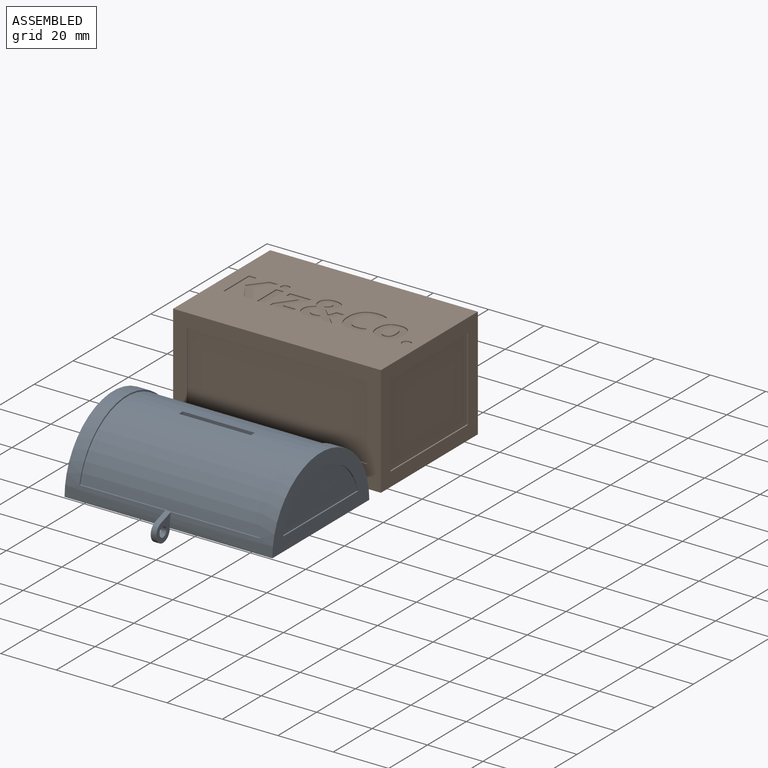
[diagram: assembled view]
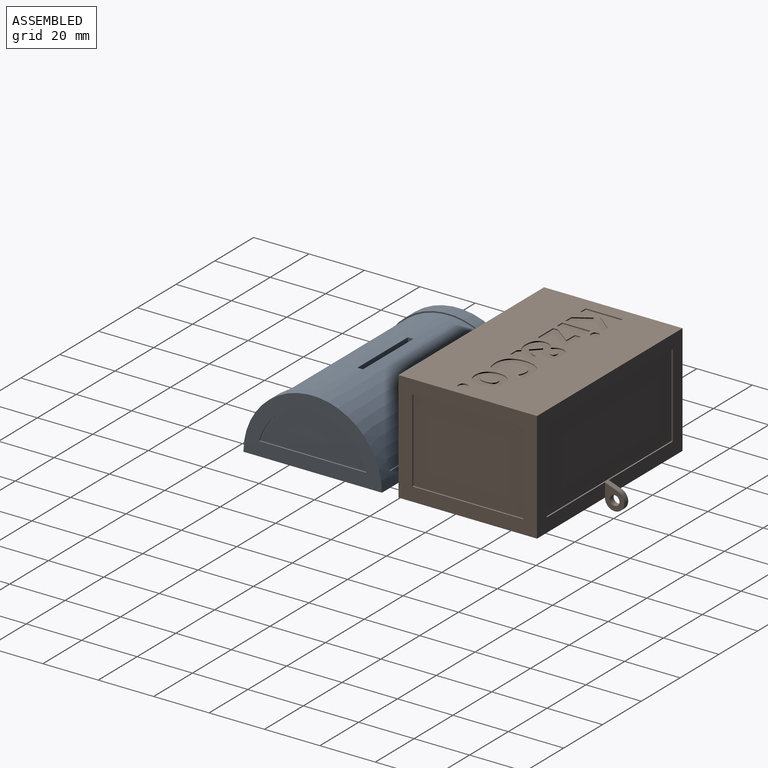
[diagram: assembled view, second angle]
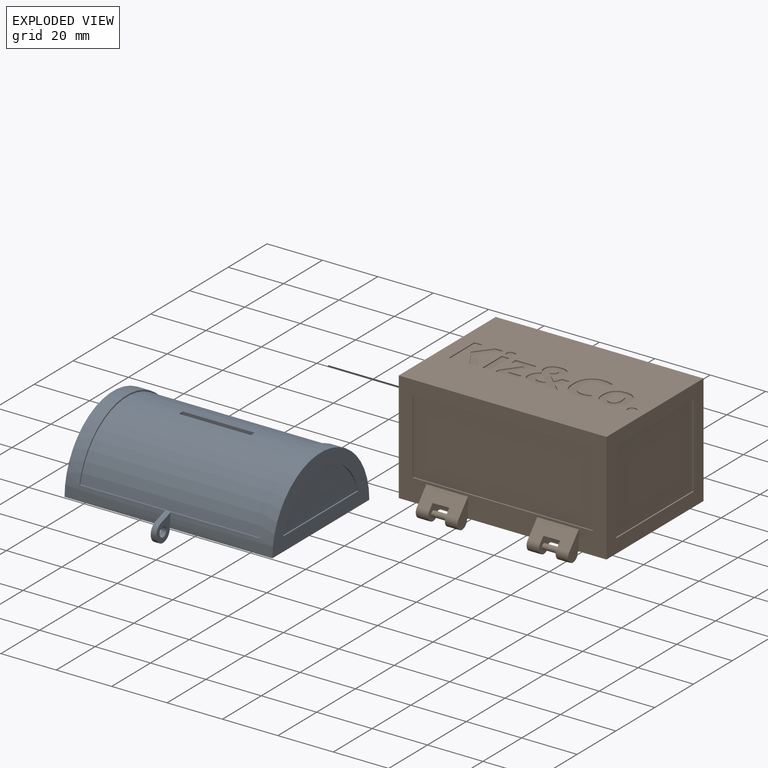
[diagram: exploded view]
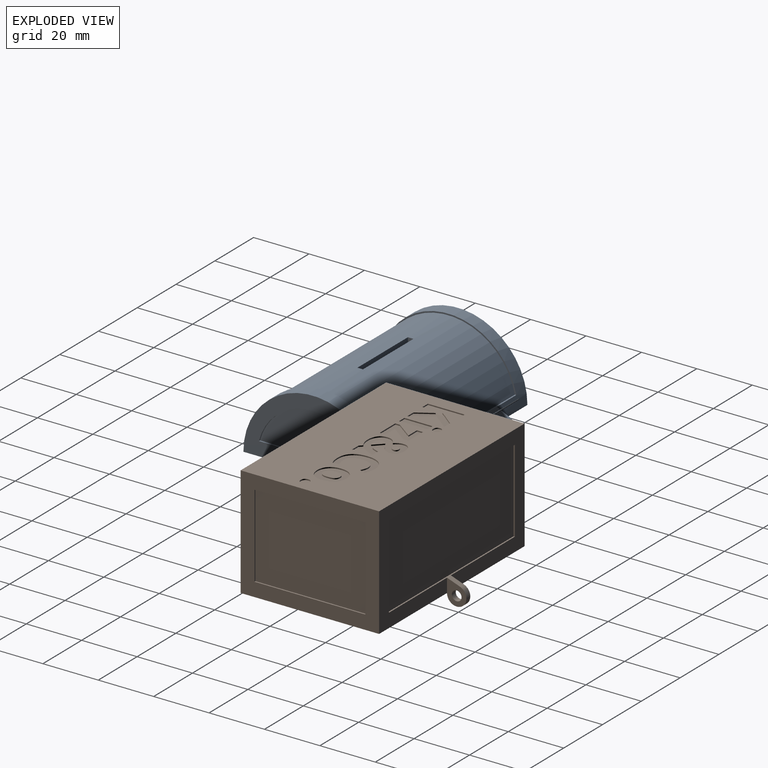
[diagram: exploded view, second angle]
ASSEMBLY  parts=2 mates=2
PART A: 39 faces, bbox 75x63x28.5 mm
  f0: cylinder r=25mm len=50mm, axis (1,0,0), area 599.1mm2, adj f3,f4,f14,f19,f27,f29,f30
  f1: cylinder r=25mm len=35mm, axis (1,0,0), area 176.2mm2, adj f3,f9,f15,f29
  f2: cylinder r=25mm len=50mm, axis (1,0,0), area 604.1mm2, adj f3,f5,f10,f20,f27,f29,f31
  f3: plane 75x50mm, normal (0,0,-1), area 714mm2, adj f0,f1,f2,f4,f5,f6,f11,f17
  f4: plane 50x25mm, normal (-1,0,0), area 551.3mm2, adj f0,f3,f24,f25
  f5: plane 50x25mm, normal (1,0,0), area 551.3mm2, adj f2,f3,f21,f22
  f6: cylinder r=3mm len=6mm, axis (1,0,0), area 64.6mm2, adj f3,f8,f9,f10
  f7: cylinder r=1.5mm len=5mm, axis (1,0,0), area 47.1mm2, adj f9,f10
  f8: plane 5x4.69mm, normal (0,0.43,0.9), area 26mm2, adj f6,f9,f10,f29
  f9: plane 8x6.51mm, normal (-1,0,0), area 27.2mm2, adj f1,f6,f7,f8
  f10: plane 8x6.51mm, normal (1,0,0), area 27.2mm2, adj f2,f6,f7,f8
  f11: cylinder r=3mm len=6mm, axis (1,0,0), area 64.6mm2, adj f3,f13,f14,f15
  f12: cylinder r=1.5mm len=5mm, axis (1,0,0), area 47.1mm2, adj f14,f15
  f13: plane 5x4.69mm, normal (0,0.43,0.9), area 26mm2, adj f11,f14,f15,f29
  f14: plane 8x6.51mm, normal (-1,0,0), area 27.2mm2, adj f0,f11,f12,f13
  f15: plane 8x6.51mm, normal (1,0,0), area 27.2mm2, adj f1,f11,f12,f13
  f16: plane 5.02x2mm, normal (0,-0.31,0.95), area 10.6mm2, adj f17,f19,f20,f27
  f17: cylinder r=3.5mm len=7mm, axis (1,0,0), area 30.9mm2, adj f3,f16,f19,f20
  f18: cylinder r=1.75mm len=3.5mm, axis (1,0,0), area 22mm2, adj f19,f20
  f19: plane 8.5x7.51mm, normal (-1,0,0), area 35mm2, adj f0,f16,f17,f18
  f20: plane 8.5x7.51mm, normal (1,0,0), area 35mm2, adj f2,f16,f17,f18
  f21: cylinder r=20mm len=38.73mm, axis (1,0,0), area 26.4mm2, adj f5,f22,f23
  f22: plane 38.73x0.5mm, normal (0,0,1), area 19.4mm2, adj f5,f21,f23
  f23: plane 38.73x15mm, normal (1,0,0), area 430.4mm2, adj f21,f22
  f24: cylinder r=20mm len=38.73mm, axis (1,0,0), area 26.4mm2, adj f4,f25,f26
  f25: plane 38.73x0.5mm, normal (0,0,1), area 19.4mm2, adj f4,f24,f26
  f26: plane 38.73x15mm, normal (-1,0,0), area 430.4mm2, adj f24,f25
  f27: plane 65x0.51mm, normal (0,0,1), area 33.2mm2, adj f0,f2,f16,f28,f30,f31
  f28: cylinder r=24.5mm len=65mm, axis (1,0,0), area 4296.4mm2, adj f27,f29,f30,f31,f35,f36,f37,f38
  f29: plane 65x0.51mm, normal (0,0,1), area 33.2mm2, adj f0,f1,f2,f8,f13,f28,f30,f31
  f30: plane 48.99x20mm, normal (1,0,0), area 33.8mm2, adj f0,f27,f28,f29
  f31: plane 48.99x20mm, normal (-1,0,0), area 33.8mm2, adj f2,f27,f28,f29
  f32: cylinder r=22mm len=69mm, axis (1,0,0), area 4716.9mm2, adj f3,f33,f34,f35,f36,f37,f38
  f33: plane 44x22mm, normal (1,0,0), area 760.3mm2, adj f3,f32
  f34: plane 44x22mm, normal (-1,0,0), area 760.3mm2, adj f3,f32
  f35: plane 2.52x2mm, normal (1,0,0), area 5mm2, adj f28,f32,f36,f38
  f36: plane 26x2.5mm, normal (0,1,0), area 65.1mm2, adj f28,f32,f35,f37
  f37: plane 2.52x2mm, normal (-1,0,0), area 5mm2, adj f28,f32,f36,f38
  f38: plane 26x2.5mm, normal (0,-1,0), area 65.1mm2, adj f28,f32,f35,f37
PART B: 172 faces, bbox 75x62.5x43.5 mm
  f0: plane 75x50mm, normal (0,0,-1), area 3319.3mm2, adj f1,f2,f3,f9,f54,f55,f56,f57
  f1: plane 50x40mm, normal (-1,0,0), area 800mm2, adj f0,f3,f4,f9,f49,f50,f51,f52
  f2: plane 50x40mm, normal (1,0,0), area 800mm2, adj f0,f3,f4,f9,f44,f45,f46,f47
  f3: plane 75x40mm, normal (0,1,0), area 1029.6mm2, adj f0,f1,f2,f4,f6,f8,f16,f17
  f4: plane 75x50.5mm, normal (0,0,1), area 717mm2, adj f1,f2,f3,f5,f7,f9,f10,f11
  f5: cylinder r=2.5mm len=5mm, axis (1,0,0), area 45.4mm2, adj f4,f6,f19,f24
  f6: plane 15x5.24mm, normal (0,0.75,-0.66), area 91.9mm2, adj f3,f5,f18,f19,f20,f24,f25,f26
  f7: cylinder r=2.5mm len=5mm, axis (1,0,0), area 45.4mm2, adj f4,f8,f16,f21
  f8: plane 15x5.24mm, normal (0,0.75,-0.66), area 91.9mm2, adj f3,f7,f15,f16,f17,f21,f22,f23
  f9: plane 75x40mm, normal (0,-1,0), area 1040mm2, adj f0,f1,f2,f4,f32,f33,f34,f35
  f10: plane 69x37mm, normal (0,-1,0), area 2553mm2, adj f4,f11,f13,f14
  f11: plane 44x37mm, normal (1,0,0), area 1628mm2, adj f4,f10,f12,f14
  f12: plane 69x37mm, normal (0,1,0), area 2553mm2, adj f4,f11,f13,f14
  f13: plane 44x37mm, normal (-1,0,0), area 1628mm2, adj f4,f10,f12,f14
  f14: plane 69x44mm, normal (0,0,1), area 3036mm2, adj f10,f11,f12,f13
  f15: cylinder r=2.5mm len=5mm, axis (1,0,0), area 45.4mm2, adj f4,f8,f17,f22
  f16: plane 9.68x5.5mm, normal (-1,0,0), area 31.9mm2, adj f3,f4,f7,f8
  f17: plane 9.68x5.5mm, normal (1,0,0), area 31.9mm2, adj f3,f4,f8,f15
  f18: cylinder r=2.5mm len=5mm, axis (1,0,0), area 45.4mm2, adj f4,f6,f20,f25
  f19: plane 9.68x5.5mm, normal (-1,0,0), area 31.9mm2, adj f3,f4,f5,f6
  f20: plane 9.68x5.5mm, normal (1,0,0), area 31.9mm2, adj f3,f4,f6,f18
  f21: plane 6x6mm, normal (1,0,0), area 22mm2, adj f4,f7,f8,f23,f27
  f22: plane 6x6mm, normal (-1,0,0), area 22mm2, adj f4,f8,f15,f23,f27
  f23: cylinder r=3.5mm len=6mm, axis (1,0,0), area 34.3mm2, adj f4,f8,f21,f22
  f24: plane 6x6mm, normal (1,0,0), area 22mm2, adj f4,f5,f6,f26,f28
  f25: plane 6x6mm, normal (-1,0,0), area 22mm2, adj f4,f6,f18,f26,f28
  f26: cylinder r=3.5mm len=6mm, axis (1,0,0), area 34.3mm2, adj f4,f6,f24,f25
  f27: cylinder r=1mm len=6mm, axis (1,0,0), area 37.7mm2, adj f21,f22
  f28: cylinder r=1mm len=6mm, axis (1,0,0), area 37.7mm2, adj f24,f25
  f29: cylinder r=3.5mm len=7mm, axis (1,0,0), area 30.5mm2, adj f4,f31,f32,f33
  f30: cylinder r=1.75mm len=3.5mm, axis (1,0,0), area 22mm2, adj f32,f33
  f31: plane 4.7x2mm, normal (0,-0.34,-0.94), area 10mm2, adj f29,f32,f33,f34
  f32: plane 8.5x7mm, normal (-1,0,0), area 34.6mm2, adj f9,f29,f30,f31
  f33: plane 8.5x7mm, normal (1,0,0), area 34.6mm2, adj f9,f29,f30,f31
  f34: plane 65x0.5mm, normal (0,0,-1), area 32.5mm2, adj f9,f31,f35,f37,f38
  f35: plane 30x0.5mm, normal (1,0,0), area 15mm2, adj f9,f34,f36,f38
  f36: plane 65x0.5mm, normal (0,0,1), area 32.5mm2, adj f9,f35,f37,f38
  f37: plane 30x0.5mm, normal (-1,0,0), area 15mm2, adj f9,f34,f36,f38
  f38: plane 65x30mm, normal (0,-1,0), area 1950mm2, adj f34,f35,f36,f37
  f39: plane 27x0.5mm, normal (-1,0,0), area 13.5mm2, adj f3,f40,f42,f43
  f40: plane 65x0.5mm, normal (0,0,1), area 32.5mm2, adj f3,f39,f41,f43
  f41: plane 27x0.5mm, normal (1,0,0), area 13.5mm2, adj f3,f40,f42,f43
  f42: plane 65x0.5mm, normal (0,0,-1), area 32.5mm2, adj f3,f39,f41,f43
  f43: plane 65x27mm, normal (0,1,0), area 1755mm2, adj f39,f40,f41,f42
  f44: plane 30x0.5mm, normal (0,-1,0), area 15mm2, adj f2,f45,f47,f48
  f45: plane 40x0.5mm, normal (0,0,-1), area 20mm2, adj f2,f44,f46,f48
  f46: plane 30x0.5mm, normal (0,1,0), area 15mm2, adj f2,f45,f47,f48
  f47: plane 40x0.5mm, normal (0,0,1), area 20mm2, adj f2,f44,f46,f48
  f48: plane 40x30mm, normal (1,0,0), area 1200mm2, adj f44,f45,f46,f47
  f49: plane 40x0.5mm, normal (0,0,1), area 20mm2, adj f1,f50,f52,f53
  f50: plane 30x0.5mm, normal (0,1,0), area 15mm2, adj f1,f49,f51,f53
  f51: plane 40x0.5mm, normal (0,0,-1), area 20mm2, adj f1,f50,f52,f53
  f52: plane 30x0.5mm, normal (0,-1,0), area 15mm2, adj f1,f49,f51,f53
  f53: plane 40x30mm, normal (-1,0,0), area 1200mm2, adj f49,f50,f51,f52
  f54: extruded ~1.5x1.35mm, area 0.9mm2, adj f0,f55,f58,f59
  f55: extruded ~1.5x1.36mm, area 0.9mm2, adj f0,f54,f56,f59
  f56: extruded ~1.13x0.4mm, area 0.5mm2, adj f0,f55,f57,f59
  f57: extruded ~1x0.4mm, area 0.4mm2, adj f0,f56,f58,f59
  f58: extruded ~1.5x1.35mm, area 0.9mm2, adj f0,f54,f57,f59
  f59: plane 3.01x2.71mm, normal (0,0,-1), area 6.8mm2, adj f54,f55,f56,f57,f58
  f60: plane 2.76x0.4mm, normal (0,-1,0), area 1.1mm2, adj f0,f61,f63,f64
  f61: plane 10.13x0.4mm, normal (-1,0,0), area 4.1mm2, adj f0,f60,f62,f64
  f62: plane 2.76x0.4mm, normal (0,1,0), area 1.1mm2, adj f0,f61,f63,f64
  f63: plane 10.13x0.4mm, normal (1,0,0), area 4.1mm2, adj f0,f60,f62,f64
  f64: plane 10.13x2.76mm, normal (0,0,-1), area 28mm2, adj f60,f61,f62,f63
  f65: plane 8x0.4mm, normal (0,-1,0), area 3.2mm2, adj f0,f66,f74,f75
  f66: plane 2.11x0.4mm, normal (-1,0,0), area 0.8mm2, adj f0,f65,f67,f75
  f67: plane 4.73x0.4mm, normal (0,1,0), area 1.9mm2, adj f0,f66,f68,f75
  f68: plane 6.22x4.56mm, normal (-0.81,-0.59,0), area 3.1mm2, adj f0,f67,f69,f75
  f69: plane 1.79x0.4mm, normal (-1,0,0), area 0.7mm2, adj f0,f68,f70,f75
  f70: plane 7.55x0.4mm, normal (0,1,0), area 3mm2, adj f0,f69,f71,f75
  f71: plane 2.11x0.4mm, normal (1,0,0), area 0.8mm2, adj f0,f70,f72,f75
  f72: plane 4.41x0.4mm, normal (0,-1,0), area 1.8mm2, adj f0,f71,f73,f75
  f73: plane 6.38x4.69mm, normal (0.81,0.59,0), area 3.2mm2, adj f0,f72,f74,f75
  f74: plane 1.63x0.4mm, normal (1,0,0), area 0.7mm2, adj f0,f65,f73,f75
  f75: plane 10.13x8mm, normal (0,0,-1), area 49.9mm2, adj f65,f66,f67,f68,f69,f70,f71,f72
  f76: extruded ~2.45x1.19mm, area 1.1mm2, adj f0,f77,f90,f91
  f77: extruded ~1.48x0.4mm, area 0.6mm2, adj f0,f76,f78,f91
  f78: extruded ~1.5x0.62mm, area 0.6mm2, adj f0,f77,f79,f91
  f79: plane 2.28x0.9mm, normal (-0.93,-0.37,0), area 1mm2, adj f0,f78,f80,f91
  f80: extruded ~3.88x0.93mm, area 1.6mm2, adj f0,f79,f81,f91
  f81: extruded ~3.3x0.83mm, area 1.4mm2, adj f0,f80,f82,f91
  f82: extruded ~2.38x2.16mm, area 1.3mm2, adj f0,f81,f83,f91
  f83: extruded ~3.62x0.75mm, area 1.5mm2, adj f0,f82,f84,f91
  f84: extruded ~5.03x1.53mm, area 2.1mm2, adj f0,f83,f85,f91
  f85: extruded ~4.42x1.75mm, area 2mm2, adj f0,f84,f86,f91
  f86: extruded ~3.64x0.68mm, area 1.5mm2, adj f0,f85,f87,f91
  f87: plane 2.35x0.4mm, normal (-1,0,0), area 0.9mm2, adj f0,f86,f88,f91
  f88: extruded ~3.38x0.7mm, area 1.4mm2, adj f0,f87,f89,f91
  f89: extruded ~4.43x3.32mm, area 2.5mm2, adj f0,f88,f90,f91
  f90: extruded ~3.32x0.87mm, area 1.4mm2, adj f0,f76,f89,f91
  f91: plane 13.61x10.09mm, normal (0,0,-1), area 61.6mm2, adj f76,f77,f78,f79,f80,f81,f82,f83
  f92: extruded ~1.15x0.41mm, area 0.5mm2, adj f0,f93,f99,f100
  f93: extruded ~1.14x0.42mm, area 0.5mm2, adj f0,f92,f94,f100
  f94: extruded ~1.18x0.4mm, area 0.5mm2, adj f0,f93,f95,f100
  f95: extruded ~1.16x0.41mm, area 0.5mm2, adj f0,f94,f96,f100
  f96: extruded ~1.13x0.42mm, area 0.5mm2, adj f0,f95,f97,f100
  f97: extruded ~1.14x0.41mm, area 0.5mm2, adj f0,f96,f98,f100
  f98: extruded ~1.16x0.4mm, area 0.5mm2, adj f0,f97,f99,f100
  f99: extruded ~1.19x0.4mm, area 0.5mm2, adj f0,f92,f98,f100
  f100: plane 3.17x3.08mm, normal (0,0,-1), area 8mm2, adj f92,f93,f94,f95,f96,f97,f98,f99
  f101: extruded ~3.87x1.3mm, area 1.7mm2, adj f0,f102,f118,f119
  f102: extruded ~2.78x0.6mm, area 1.1mm2, adj f0,f101,f103,f119
  f103: extruded ~1.82x1.71mm, area 1mm2, adj f0,f102,f104,f119
  f104: extruded ~2.57x0.63mm, area 1.1mm2, adj f0,f103,f105,f119
  f105: extruded ~3.64x1.38mm, area 1.6mm2, adj f0,f104,f106,f119
  f106: extruded ~3.86x1.29mm, area 1.7mm2, adj f0,f105,f107,f119
  f107: extruded ~2.79x0.6mm, area 1.2mm2, adj f0,f106,f108,f119
  f108: extruded ~1.83x1.71mm, area 1mm2, adj f0,f107,f109,f119
  f109: extruded ~2.57x0.64mm, area 1.1mm2, adj f0,f108,f118,f119
  f110: extruded ~2.27x0.49mm, area 0.9mm2, adj f111,f117,f119,f120
  f111: extruded ~2.26x0.49mm, area 0.9mm2, adj f110,f112,f119,f120
  f112: extruded ~1.59x0.75mm, area 0.7mm2, adj f111,f113,f119,f120
  f113: extruded ~1.6x0.75mm, area 0.7mm2, adj f112,f114,f119,f120
  f114: extruded ~2.26x0.49mm, area 0.9mm2, adj f113,f115,f119,f120
  f115: extruded ~2.28x0.48mm, area 0.9mm2, adj f114,f116,f119,f120
  f116: extruded ~1.59x0.77mm, area 0.7mm2, adj f115,f117,f119,f120
  f117: extruded ~1.61x0.77mm, area 0.7mm2, adj f110,f116,f119,f120
  f118: extruded ~3.63x1.4mm, area 1.6mm2, adj f0,f101,f109,f119
  f119: plane 10.5x9.82mm, normal (0,0,-1), area 62.8mm2, adj f101,f102,f103,f104,f105,f106,f107,f108
  f120: plane 6.05x4.18mm, normal (0,0,-1), area 21.3mm2, adj f110,f111,f112,f113,f114,f115,f116,f117
  f121: extruded ~0.76x0.4mm, area 0.3mm2, adj f122,f154,f155,f171
  f122: extruded ~0.98x0.42mm, area 0.4mm2, adj f121,f123,f155,f171
  f123: extruded ~1.2x0.86mm, area 0.6mm2, adj f122,f124,f155,f171
  f124: extruded ~1.76x0.86mm, area 0.8mm2, adj f123,f125,f155,f171
  f125: extruded ~0.82x0.4mm, area 0.4mm2, adj f124,f126,f155,f171
  f126: extruded ~0.96x0.4mm, area 0.4mm2, adj f125,f154,f155,f171
  f127: extruded ~1.24x0.59mm, area 0.6mm2, adj f128,f152,f155,f156
  f128: extruded ~1.01x0.4mm, area 0.4mm2, adj f127,f129,f155,f156
  f129: extruded ~0.83x0.83mm, area 0.5mm2, adj f128,f130,f155,f156
  f130: plane 3.01x2.99mm, normal (0.7,-0.71,0), area 1.7mm2, adj f129,f131,f155,f156
  f131: extruded ~2.06x0.55mm, area 0.9mm2, adj f130,f152,f155,f156
  f132: plane 3.41x0.4mm, normal (0,-1,0), area 1.4mm2, adj f0,f133,f153,f155
  f133: plane 2.73x2.65mm, normal (-0.7,0.72,0), area 1.5mm2, adj f0,f132,f134,f155
  f134: extruded ~2.06x1.3mm, area 1mm2, adj f0,f133,f135,f155
  f135: extruded ~2.39x0.9mm, area 1mm2, adj f0,f134,f136,f155
  f136: plane 2.88x0.4mm, normal (0,1,0), area 1.2mm2, adj f0,f135,f137,f155
  f137: extruded ~2.73x1.11mm, area 1.2mm2, adj f0,f136,f138,f155
  f138: plane 2.57x2.51mm, normal (-0.7,0.72,0), area 1.4mm2, adj f0,f137,f139,f155
  f139: extruded ~2.02x1.7mm, area 1.1mm2, adj f0,f138,f140,f155
  f140: extruded ~1.97x0.63mm, area 0.8mm2, adj f0,f139,f141,f155
  f141: extruded ~2.1x1.01mm, area 1mm2, adj f0,f140,f142,f155
  f142: extruded ~2.7x0.78mm, area 1.1mm2, adj f0,f141,f143,f155
  f143: extruded ~2.82x0.84mm, area 1.2mm2, adj f0,f142,f144,f155
  f144: extruded ~2.22x1.06mm, area 1mm2, adj f0,f143,f145,f155
  f145: extruded ~1.55x0.4mm, area 0.6mm2, adj f0,f144,f146,f155
  f146: extruded ~1.49x0.99mm, area 0.7mm2, adj f0,f145,f147,f155
  f147: extruded ~1.88x1.63mm, area 1mm2, adj f0,f146,f148,f155
  f148: extruded ~2.12x0.55mm, area 0.9mm2, adj f0,f147,f149,f155
  f149: extruded ~2.74x1.3mm, area 1.3mm2, adj f0,f148,f150,f155
  f150: extruded ~3.51x1.02mm, area 1.5mm2, adj f0,f149,f151,f155
  f151: extruded ~3.91x1.21mm, area 1.7mm2, adj f0,f150,f153,f155
  f152: extruded ~1.5x0.46mm, area 0.6mm2, adj f127,f131,f155,f156
  f153: plane 1.04x1.02mm, normal (0.7,-0.71,0), area 0.6mm2, adj f0,f132,f151,f155
  f154: extruded ~0.84x0.4mm, area 0.4mm2, adj f121,f126,f155,f171
  f155: plane 13.61x13.17mm, normal (0,0,-1), area 98.4mm2, adj f121,f122,f123,f124,f125,f126,f127,f128
  f156: plane 4.14x3.54mm, normal (0,0,-1), area 8.5mm2, adj f127,f128,f129,f130,f131,f152
  f157: plane 3.19x0.4mm, normal (0,-1,0), area 1.3mm2, adj f0,f158,f169,f170
  f158: plane 7.38x4.65mm, normal (-0.85,0.53,0), area 3.5mm2, adj f0,f157,f159,f170
  f159: plane 5.86x4.62mm, normal (-0.79,-0.62,0), area 3mm2, adj f0,f158,f160,f170
  f160: plane 3.12x0.4mm, normal (0,1,0), area 1.2mm2, adj f0,f159,f161,f170
  f161: plane 4.5x3.59mm, normal (0.78,0.62,0), area 2.3mm2, adj f0,f160,f162,f170
  f162: plane 1.56x1.1mm, normal (0.82,0.58,0), area 0.8mm2, adj f0,f161,f163,f170
  f163: plane 6.06x0.4mm, normal (-1,0,0), area 2.4mm2, adj f0,f162,f164,f170
  f164: plane 2.81x0.4mm, normal (0,1,0), area 1.1mm2, adj f0,f163,f165,f170
  f165: plane 13.24x0.4mm, normal (1,0,0), area 5.3mm2, adj f0,f164,f166,f170
  f166: plane 2.81x0.4mm, normal (0,-1,0), area 1.1mm2, adj f0,f165,f167,f170
  f167: plane 4.73x0.4mm, normal (-1,0,0), area 1.9mm2, adj f0,f166,f168,f170
  f168: plane 1.19x0.85mm, normal (-0.58,-0.81,0), area 0.6mm2, adj f0,f167,f169,f170
  f169: plane 5.58x3.47mm, normal (0.85,-0.53,0), area 2.6mm2, adj f0,f157,f168,f170
  f170: plane 13.24x10.65mm, normal (0,0,-1), area 80.4mm2, adj f157,f158,f159,f160,f161,f162,f163,f164
  f171: plane 2.87x2.47mm, normal (0,0,-1), area 5.1mm2, adj f121,f122,f123,f124,f125,f126,f154
PLACE A t=(94.57,55.57,47.62)mm
PLACE B rot(axis=(1,0,0),180deg) t=(19.57,136.57,87.62)mm
MATE planar A.f5 <-> B.f2  axis (1,0,0) through (94.57,55.57,57.73)mm
MATE cylindrical B.f5 <-> A.f7  axis (1,0,0) through (77.07,83.57,47.62)mm
